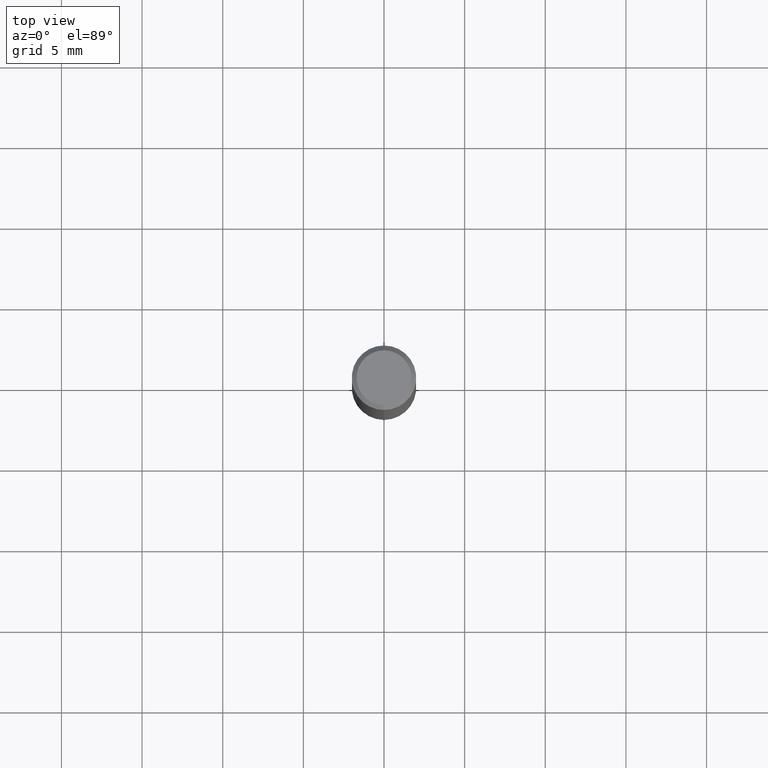
[diagram: clean part render]
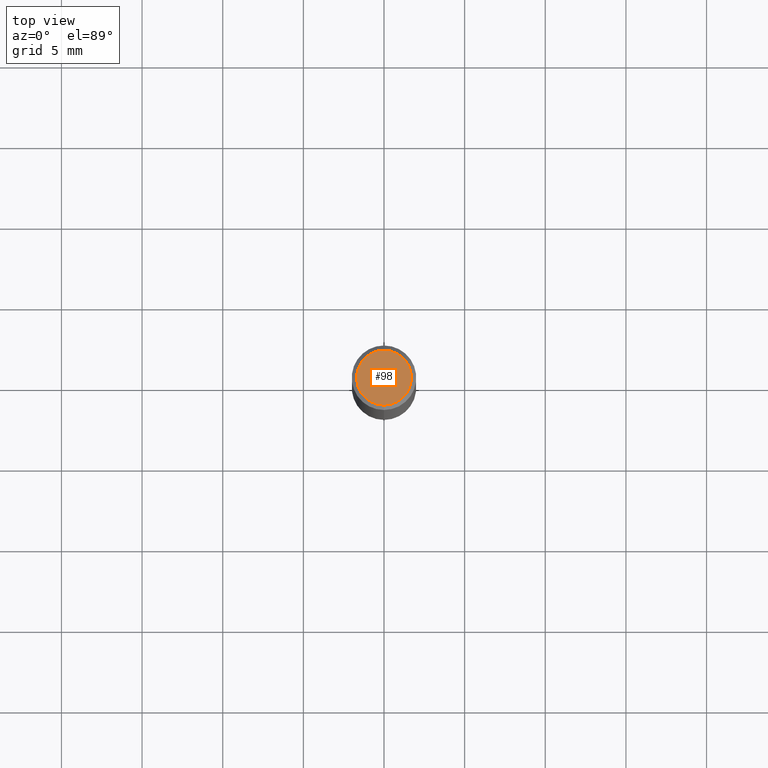
[diagram: same view with one face highlighted and labeled with its STEP entity id]
A machine part, top view. The second image highlights one B-rep face of the part: STEP entity #98.
In plain terms, the highlighted planar face has unit normal (-0, 0, 1).
Its self-contained STEP definition (entity closure, byte-faithful):
#98=ADVANCED_FACE('',(#236),#237,.T.);
#150=VERTEX_POINT('',#297);
#162=VERTEX_POINT('',#312);
#172=EDGE_CURVE('',#150,#162,#322,.T.);
#174=EDGE_CURVE('',#162,#150,#324,.T.);
#236=FACE_OUTER_BOUND('',#382,.T.);
#237=PLANE('',#383);
#297=CARTESIAN_POINT('',(0.0,1.7,0.0));
#312=CARTESIAN_POINT('',(2.08183080149804E-016,-1.7,0.0));
#322=CIRCLE('',#485,1.7);
#324=CIRCLE('',#488,1.7);
#382=EDGE_LOOP('',(#552,#553));
#383=AXIS2_PLACEMENT_3D('',#554,#555,#556);
#485=AXIS2_PLACEMENT_3D('',#667,#668,#669);
#488=AXIS2_PLACEMENT_3D('',#670,#671,#672);
#552=ORIENTED_EDGE('',*,*,#172,.F.);
#553=ORIENTED_EDGE('',*,*,#174,.F.);
#554=CARTESIAN_POINT('',(0.0,0.85,0.0));
#555=DIRECTION('',(-0.0,0.0,1.0));
#556=DIRECTION('',(0.0,-1.0,0.0));
#667=CARTESIAN_POINT('',(0.0,0.0,0.0));
#668=DIRECTION('',(0.0,0.0,-1.0));
#669=DIRECTION('',(0.0,1.0,0.0));
#670=CARTESIAN_POINT('',(0.0,0.0,0.0));
#671=DIRECTION('',(0.0,0.0,-1.0));
#672=DIRECTION('',(0.0,1.0,0.0));